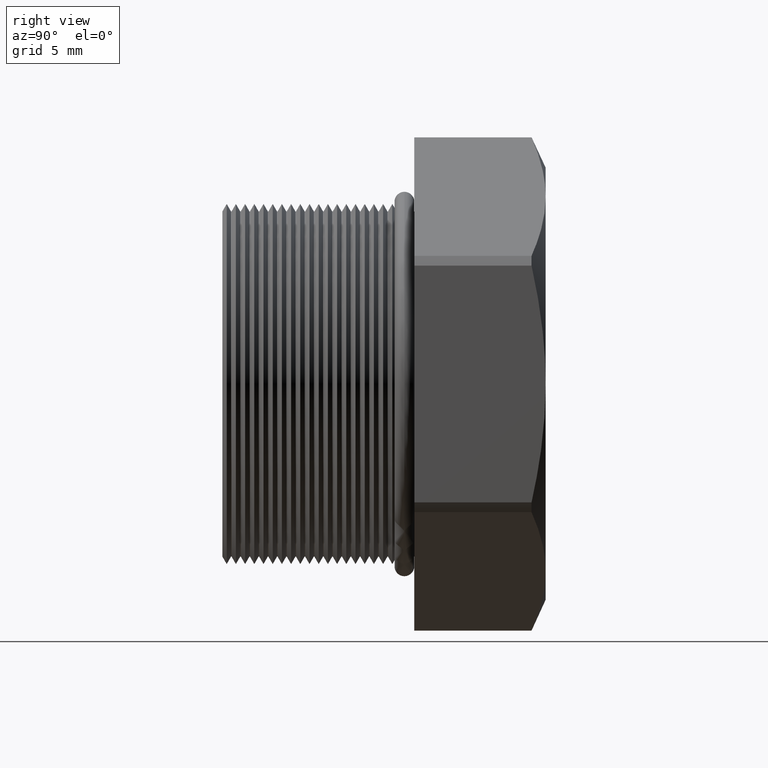
[diagram: clean part render]
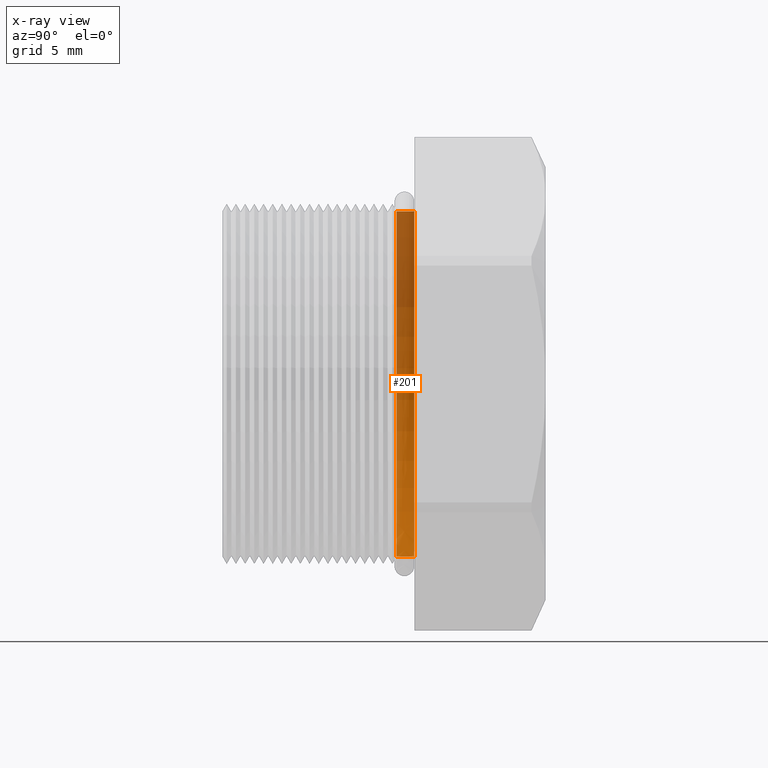
[diagram: x-ray — body ghosted, one internal face saturated and labeled with its STEP entity id]
A machine part, right view, then the same camera in x-ray: the body is ghosted and one INTERNAL B-rep face — a face not visible from any outside direction — is saturated and labeled: STEP entity #201.
In plain terms, the highlighted cylindrical surface (partial cylindrical patch) has radius 8.001 mm, axis along (-0, -1, -0).
Its self-contained STEP definition (entity closure, byte-faithful):
#195 = EDGE_LOOP ( 'NONE', ( #203, #235, #233, #234 ) ) ;
#201 = ADVANCED_FACE ( 'NONE', ( #4714 ), #4713, .T. ) ;
#203 = ORIENTED_EDGE ( 'NONE', *, *, #779, .F. ) ;
#223 = EDGE_CURVE ( 'NONE', #9180, #9160, #4742, .T. ) ;
#227 = EDGE_CURVE ( 'NONE', #798, #800, #4736, .T. ) ;
#233 = ORIENTED_EDGE ( 'NONE', *, *, #777, .T. ) ;
#234 = ORIENTED_EDGE ( 'NONE', *, *, #223, .F. ) ;
#235 = ORIENTED_EDGE ( 'NONE', *, *, #227, .T. ) ;
#777 = EDGE_CURVE ( 'NONE', #800, #9160, #5780, .T. ) ;
#779 = EDGE_CURVE ( 'NONE', #798, #9180, #5776, .T. ) ;
#798 = VERTEX_POINT ( 'NONE', #5789 ) ;
#800 = VERTEX_POINT ( 'NONE', #5788 ) ;
#1712 = CARTESIAN_POINT ( 'NONE',  ( 3.857637417314162700E-017, 0.1355072448100088900, 0.3150000000000000000 ) ) ;
#1717 = CARTESIAN_POINT ( 'NONE',  ( 0.0000000000000000000, 0.1355072448100088900, -0.3150000000000000000 ) ) ;
#4708 = DIRECTION ( 'NONE',  ( 0.0000000000000000000, 0.0000000000000000000, -1.000000000000000000 ) ) ;
#4709 = DIRECTION ( 'NONE',  ( -0.0000000000000000000, -1.000000000000000000, -0.0000000000000000000 ) ) ;
#4710 = CARTESIAN_POINT ( 'NONE',  ( 0.0000000000000000000, 0.0000000000000000000, 0.0000000000000000000 ) ) ;
#4711 = AXIS2_PLACEMENT_3D ( 'NONE', #4710, #4709, #4708 ) ;
#4713 = CYLINDRICAL_SURFACE ( 'NONE', #4711, 0.3150000000000000000 ) ;
#4714 = FACE_OUTER_BOUND ( 'NONE', #195, .T. ) ;
#4732 = DIRECTION ( 'NONE',  ( 0.0000000000000000000, 0.0000000000000000000, -1.000000000000000000 ) ) ;
#4733 = DIRECTION ( 'NONE',  ( -0.0000000000000000000, -1.000000000000000000, -0.0000000000000000000 ) ) ;
#4734 = CARTESIAN_POINT ( 'NONE',  ( 0.0000000000000000000, 0.1675548905829479500, 0.0000000000000000000 ) ) ;
#4735 = AXIS2_PLACEMENT_3D ( 'NONE', #4734, #4733, #4732 ) ;
#4736 = CIRCLE ( 'NONE', #4735, 0.3150000000000000000 ) ;
#4738 = DIRECTION ( 'NONE',  ( 0.0000000000000000000, 0.0000000000000000000, -1.000000000000000000 ) ) ;
#4739 = DIRECTION ( 'NONE',  ( 0.0000000000000000000, -1.000000000000000000, 0.0000000000000000000 ) ) ;
#4740 = CARTESIAN_POINT ( 'NONE',  ( 0.0000000000000000000, 0.1355072448100088900, 0.0000000000000000000 ) ) ;
#4741 = AXIS2_PLACEMENT_3D ( 'NONE', #4740, #4739, #4738 ) ;
#4742 = CIRCLE ( 'NONE', #4741, 0.3150000000000000000 ) ;
#5773 = DIRECTION ( 'NONE',  ( -0.0000000000000000000, -1.000000000000000000, -0.0000000000000000000 ) ) ;
#5774 = VECTOR ( 'NONE', #5773, 39.37007874015748100 ) ;
#5775 = CARTESIAN_POINT ( 'NONE',  ( 3.857637417314162700E-017, 0.0000000000000000000, 0.3150000000000000000 ) ) ;
#5776 = LINE ( 'NONE', #5775, #5774 ) ;
#5777 = DIRECTION ( 'NONE',  ( -0.0000000000000000000, -1.000000000000000000, -0.0000000000000000000 ) ) ;
#5778 = VECTOR ( 'NONE', #5777, 39.37007874015748100 ) ;
#5779 = CARTESIAN_POINT ( 'NONE',  ( 0.0000000000000000000, 0.0000000000000000000, -0.3150000000000000000 ) ) ;
#5780 = LINE ( 'NONE', #5779, #5778 ) ;
#5788 = CARTESIAN_POINT ( 'NONE',  ( 0.0000000000000000000, 0.1675548905829479500, -0.3150000000000000000 ) ) ;
#5789 = CARTESIAN_POINT ( 'NONE',  ( 3.857637417314162700E-017, 0.1675548905829479500, 0.3150000000000000000 ) ) ;
#9160 = VERTEX_POINT ( 'NONE', #1717 ) ;
#9180 = VERTEX_POINT ( 'NONE', #1712 ) ;